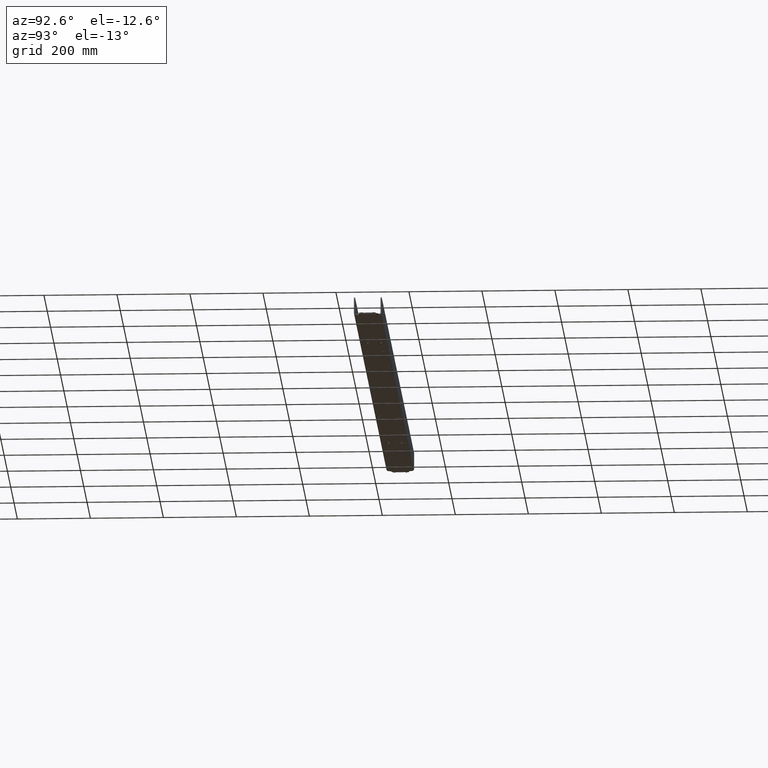
[diagram: clean part render]
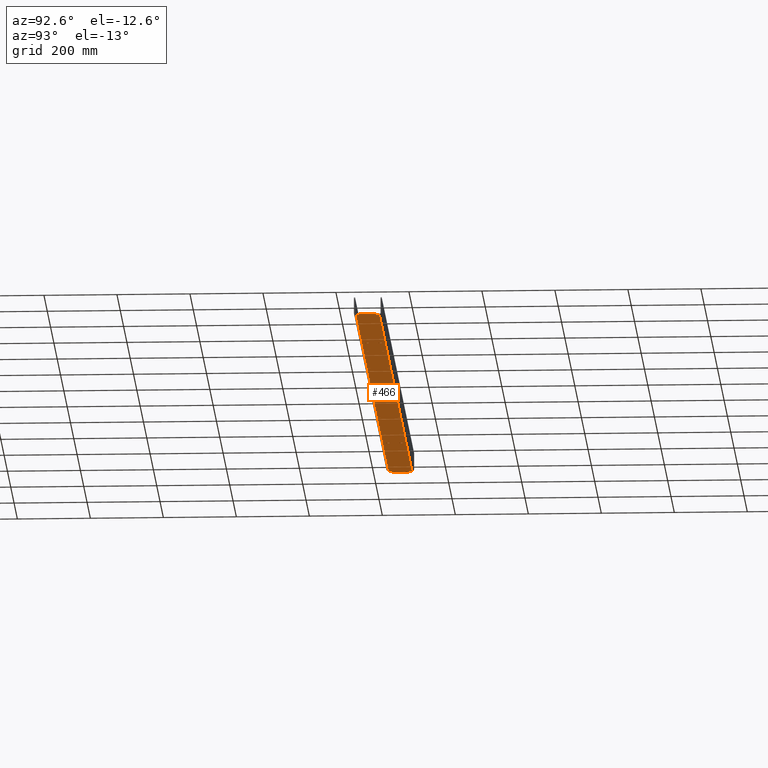
[diagram: same view with one face highlighted and labeled with its STEP entity id]
A machine part, auxiliary view. The second image highlights one B-rep face of the part: STEP entity #466.
In plain terms, the highlighted planar face has unit normal (-0, 0, 1).
Its self-contained STEP definition (entity closure, byte-faithful):
#2 = DIRECTION ( 'NONE',  ( -0.000000000000000000, -1.000000000000000000, 0.000000000000000000 ) ) ;
#10 = CARTESIAN_POINT ( 'NONE',  ( 1090.972523324353915, -1163.805262667904117, 625.0000000000001137 ) ) ;
#18 = DIRECTION ( 'NONE',  ( -0.000000000000000000, -1.000000000000000000, 0.000000000000000000 ) ) ;
#21 = CARTESIAN_POINT ( 'NONE',  ( 1090.972523324353915, -1155.305262667904344, 625.0000000000001137 ) ) ;
#24 = EDGE_CURVE ( 'NONE', #2666, #2037, #2991, .T. ) ;
#26 = CARTESIAN_POINT ( 'NONE',  ( 1090.972523324353915, -1155.305262667904344, 625.0000000000001137 ) ) ;
#33 = LINE ( 'NONE', #1465, #1481 ) ;
#34 = ORIENTED_EDGE ( 'NONE', *, *, #898, .F. ) ;
#38 = CARTESIAN_POINT ( 'NONE',  ( -309.8999999999996362, -1154.805262667903889, 625.0000000000001137 ) ) ;
#39 = VECTOR ( 'NONE', #1115, 1000.000000000000000 ) ;
#41 = DIRECTION ( 'NONE',  ( -1.000000000000000000, 0.000000000000000000, -0.000000000000000000 ) ) ;
#48 = ORIENTED_EDGE ( 'NONE', *, *, #209, .F. ) ;
#52 = LINE ( 'NONE', #2818, #665 ) ;
#55 = CARTESIAN_POINT ( 'NONE',  ( 1090.972523324353915, -1113.805262667903662, 625.0000000000001137 ) ) ;
#60 = ORIENTED_EDGE ( 'NONE', *, *, #2109, .F. ) ;
#61 = CARTESIAN_POINT ( 'NONE',  ( 633.1567381882846348, -1149.805262667904117, 625.0000000000001137 ) ) ;
#69 = DIRECTION ( 'NONE',  ( -0.000000000000000000, 0.000000000000000000, 1.000000000000000000 ) ) ;
#71 = CARTESIAN_POINT ( 'NONE',  ( 1090.972523324353915, -1155.805262667904344, 625.0000000000001137 ) ) ;
#92 = AXIS2_PLACEMENT_3D ( 'NONE', #1731, #3018, #2455 ) ;
#93 = VERTEX_POINT ( 'NONE', #794 ) ;
#94 = VECTOR ( 'NONE', #406, 1000.000000000000000 ) ;
#96 = CARTESIAN_POINT ( 'NONE',  ( 999.9999999999996589, -1149.305262667904344, 625.0000000000001137 ) ) ;
#102 = VECTOR ( 'NONE', #2, 1000.000000000000000 ) ;
#105 = VERTEX_POINT ( 'NONE', #546 ) ;
#106 = CARTESIAN_POINT ( 'NONE',  ( 519.9000000000004320, -1155.805262667904344, 625.0000000000001137 ) ) ;
#107 = CARTESIAN_POINT ( 'NONE',  ( -998.9999999999996589, -1114.305262667903435, 625.0000000000000000 ) ) ;
#110 = DIRECTION ( 'NONE',  ( 0.000000000000000000, 0.000000000000000000, 1.000000000000000000 ) ) ;
#112 = EDGE_CURVE ( 'NONE', #2290, #2559, #1256, .T. ) ;
#117 = ORIENTED_EDGE ( 'NONE', *, *, #2677, .F. ) ;
#118 = LINE ( 'NONE', #1369, #2054 ) ;
#120 = ORIENTED_EDGE ( 'NONE', *, *, #1865, .F. ) ;
#122 = DIRECTION ( 'NONE',  ( -0.000000000000000000, 0.000000000000000000, 1.000000000000000000 ) ) ;
#126 = FACE_BOUND ( 'NONE', #2669, .T. ) ;
#130 = CARTESIAN_POINT ( 'NONE',  ( 996.0000000000006821, -1108.305262667903662, 625.0000000000001137 ) ) ;
#133 = CARTESIAN_POINT ( 'NONE',  ( 996.0000000000003411, -1093.805262667904117, 625.0000000000001137 ) ) ;
#140 = VECTOR ( 'NONE', #1093, 1000.000000000000000 ) ;
#146 = DIRECTION ( 'NONE',  ( -1.000000000000000000, -0.000000000000000000, -0.000000000000000000 ) ) ;
#151 = VECTOR ( 'NONE', #2381, 1000.000000000000000 ) ;
#157 = VERTEX_POINT ( 'NONE', #1860 ) ;
#164 = CARTESIAN_POINT ( 'NONE',  ( 309.8999999999996362, -1160.805262667903662, 625.0000000000001137 ) ) ;
#165 = CARTESIAN_POINT ( 'NONE',  ( 989.9999999999995453, -1155.305262667904344, 625.0000000000001137 ) ) ;
#167 = ORIENTED_EDGE ( 'NONE', *, *, #185, .T. ) ;
#170 = CARTESIAN_POINT ( 'NONE',  ( 1090.972523324353915, -1099.805262667904117, 625.0000000000001137 ) ) ;
#180 = CARTESIAN_POINT ( 'NONE',  ( -628.1567381882845211, -1149.805262667904117, 625.0000000000001137 ) ) ;
#185 = EDGE_CURVE ( 'NONE', #543, #2907, #2591, .T. ) ;
#190 = DIRECTION ( 'NONE',  ( 1.000000000000000000, 0.000000000000000000, 0.000000000000000000 ) ) ;
#194 = DIRECTION ( 'NONE',  ( 0.000000000000000000, 1.000000000000000000, -0.000000000000000000 ) ) ;
#197 = DIRECTION ( 'NONE',  ( -1.000000000000000000, -0.000000000000000000, -0.000000000000000000 ) ) ;
#207 = AXIS2_PLACEMENT_3D ( 'NONE', #280, #2245, #539 ) ;
#209 = EDGE_CURVE ( 'NONE', #2144, #1702, #2935, .T. ) ;
#210 = CARTESIAN_POINT ( 'NONE',  ( -999.9999999999995453, -1146.305262667904117, 625.0000000000001137 ) ) ;
#214 = ORIENTED_EDGE ( 'NONE', *, *, #2799, .T. ) ;
#229 = CARTESIAN_POINT ( 'NONE',  ( 999.9999999999996589, -1114.305262667903435, 625.0000000000001137 ) ) ;
#232 = EDGE_CURVE ( 'NONE', #105, #1212, #2614, .T. ) ;
#239 = DIRECTION ( 'NONE',  ( 0.000000000000000000, -0.000000000000000000, -1.000000000000000000 ) ) ;
#243 = CIRCLE ( 'NONE', #1274, 1.000000000000000888 ) ;
#245 = LINE ( 'NONE', #1745, #2435 ) ;
#248 = AXIS2_PLACEMENT_3D ( 'NONE', #107, #2078, #2939 ) ;
#256 = VERTEX_POINT ( 'NONE', #2895 ) ;
#260 = EDGE_LOOP ( 'NONE', ( #1967, #1597, #591, #3069 ) ) ;
#262 = LINE ( 'NONE', #21, #920 ) ;
#267 = CARTESIAN_POINT ( 'NONE',  ( -313.0999999999995111, -1108.805262667903889, 625.0000000000001137 ) ) ;
#273 = EDGE_CURVE ( 'NONE', #950, #1032, #2862, .T. ) ;
#274 = DIRECTION ( 'NONE',  ( 0.000000000000000000, 1.000000000000000000, -0.000000000000000000 ) ) ;
#275 = VERTEX_POINT ( 'NONE', #1217 ) ;
#280 = CARTESIAN_POINT ( 'NONE',  ( 628.1567381882845211, -1149.805262667904117, 625.0000000000001137 ) ) ;
#282 = DIRECTION ( 'NONE',  ( 1.000000000000000000, 0.000000000000000000, 0.000000000000000000 ) ) ;
#286 = EDGE_CURVE ( 'NONE', #412, #1841, #2741, .T. ) ;
#287 = CARTESIAN_POINT ( 'NONE',  ( 313.0999999999996248, -1160.805262667903662, 625.0000000000001137 ) ) ;
#294 = ORIENTED_EDGE ( 'NONE', *, *, #3186, .F. ) ;
#299 = CARTESIAN_POINT ( 'NONE',  ( 990.0000000000006821, -1108.305262667903662, 625.0000000000001137 ) ) ;
#307 = CARTESIAN_POINT ( 'NONE',  ( -523.1000000000005912, -1113.805262667903662, 625.0000000000001137 ) ) ;
#309 = VECTOR ( 'NONE', #2917, 1000.000000000000000 ) ;
#314 = EDGE_CURVE ( 'NONE', #1253, #1322, #245, .T. ) ;
#334 = EDGE_LOOP ( 'NONE', ( #797, #3137, #792, #968 ) ) ;
#344 = AXIS2_PLACEMENT_3D ( 'NONE', #3076, #69, #2287 ) ;
#348 = DIRECTION ( 'NONE',  ( 0.000000000000000000, -0.000000000000000000, -1.000000000000000000 ) ) ;
#353 = VERTEX_POINT ( 'NONE', #2987 ) ;
#355 = ORIENTED_EDGE ( 'NONE', *, *, #1872, .T. ) ;
#356 = VECTOR ( 'NONE', #1165, 1000.000000000000000 ) ;
#359 = CARTESIAN_POINT ( 'NONE',  ( 1090.972523324353915, -1108.805262667903889, 625.0000000000001137 ) ) ;
#360 = AXIS2_PLACEMENT_3D ( 'NONE', #1959, #239, #1223 ) ;
#363 = DIRECTION ( 'NONE',  ( -0.000000000000000000, -1.000000000000000000, 0.000000000000000000 ) ) ;
#364 = LINE ( 'NONE', #1550, #1433 ) ;
#366 = DIRECTION ( 'NONE',  ( 0.000000000000000000, 1.000000000000000000, -0.000000000000000000 ) ) ;
#369 = CARTESIAN_POINT ( 'NONE',  ( 981.4999999999996589, -1099.805262667904117, 625.0000000000001137 ) ) ;
#372 = VERTEX_POINT ( 'NONE', #2490 ) ;
#377 = VERTEX_POINT ( 'NONE', #1979 ) ;
#386 = EDGE_CURVE ( 'NONE', #1668, #2444, #2091, .T. ) ;
#387 = CARTESIAN_POINT ( 'NONE',  ( 998.9999999999996589, -1117.305262667903662, 625.0000000000000000 ) ) ;
#392 = DIRECTION ( 'NONE',  ( -0.000000000000000000, -1.000000000000000000, 0.000000000000000000 ) ) ;
#406 = DIRECTION ( 'NONE',  ( 0.000000000000000000, 1.000000000000000000, -0.000000000000000000 ) ) ;
#407 = CIRCLE ( 'NONE', #2909, 5.000000000000115463 ) ;
#408 = EDGE_CURVE ( 'NONE', #353, #2452, #1621, .T. ) ;
#412 = VERTEX_POINT ( 'NONE', #165 ) ;
#414 = CARTESIAN_POINT ( 'NONE',  ( -519.9000000000004320, -1149.805262667904344, 625.0000000000001137 ) ) ;
#415 = VECTOR ( 'NONE', #282, 1000.000000000000000 ) ;
#418 = EDGE_CURVE ( 'NONE', #2870, #1668, #425, .T. ) ;
#422 = EDGE_CURVE ( 'NONE', #3077, #3196, #1816, .T. ) ;
#425 = LINE ( 'NONE', #3087, #513 ) ;
#426 = CARTESIAN_POINT ( 'NONE',  ( -989.9999999999997726, -1155.305262667904344, 625.0000000000001137 ) ) ;
#429 = DIRECTION ( 'NONE',  ( -1.000000000000000000, 0.000000000000000000, 0.000000000000000000 ) ) ;
#436 = CARTESIAN_POINT ( 'NONE',  ( 519.9000000000004320, -1107.805262667903889, 625.0000000000001137 ) ) ;
#450 = DIRECTION ( 'NONE',  ( 1.000000000000000000, 0.000000000000000000, 0.000000000000000000 ) ) ;
#455 = DIRECTION ( 'NONE',  ( 0.000000000000000000, 1.000000000000000000, -0.000000000000000000 ) ) ;
#466 = ADVANCED_FACE ( 'NONE', ( #1358, #2327, #2342, #126, #1132, #1427, #1919, #975, #735, #1931, #2459, #1721, #2691 ), #1734, .F. ) ;
#479 = CARTESIAN_POINT ( 'NONE',  ( 998.9999999999996589, -1118.305262667903435, 625.0000000000001137 ) ) ;
#481 = EDGE_CURVE ( 'NONE', #889, #275, #1710, .T. ) ;
#482 = CARTESIAN_POINT ( 'NONE',  ( 1090.972523324353915, -1150.305262667904117, 625.0000000000001137 ) ) ;
#494 = ORIENTED_EDGE ( 'NONE', *, *, #2554, .F. ) ;
#497 = DIRECTION ( 'NONE',  ( -0.000000000000000000, -1.000000000000000000, 0.000000000000000000 ) ) ;
#501 = DIRECTION ( 'NONE',  ( 1.000000000000000000, 0.000000000000000000, 0.000000000000000000 ) ) ;
#502 = ORIENTED_EDGE ( 'NONE', *, *, #2779, .T. ) ;
#510 = DIRECTION ( 'NONE',  ( -1.000000000000000000, -0.000000000000000000, -0.000000000000000000 ) ) ;
#511 = ORIENTED_EDGE ( 'NONE', *, *, #386, .F. ) ;
#513 = VECTOR ( 'NONE', #146, 1000.000000000000000 ) ;
#515 = VECTOR ( 'NONE', #924, 1000.000000000000000 ) ;
#519 = EDGE_CURVE ( 'NONE', #2444, #1003, #2508, .T. ) ;
#523 = CARTESIAN_POINT ( 'NONE',  ( 999.9999999999996589, -1093.805262667904117, 625.0000000000001137 ) ) ;
#531 = EDGE_CURVE ( 'NONE', #1320, #2885, #1842, .T. ) ;
#539 = DIRECTION ( 'NONE',  ( 1.000000000000000000, 0.000000000000000000, 0.000000000000000000 ) ) ;
#541 = VERTEX_POINT ( 'NONE', #61 ) ;
#543 = VERTEX_POINT ( 'NONE', #1044 ) ;
#546 = CARTESIAN_POINT ( 'NONE',  ( -313.0999999999995111, -1160.805262667903662, 625.0000000000001137 ) ) ;
#550 = ORIENTED_EDGE ( 'NONE', *, *, #2401, .T. ) ;
#552 = AXIS2_PLACEMENT_3D ( 'NONE', #1381, #1640, #2369 ) ;
#555 = CIRCLE ( 'NONE', #92, 5.000000000000115463 ) ;
#556 = VECTOR ( 'NONE', #2763, 1000.000000000000000 ) ;
#573 = VERTEX_POINT ( 'NONE', #709 ) ;
#578 = VERTEX_POINT ( 'NONE', #2180 ) ;
#580 = CARTESIAN_POINT ( 'NONE',  ( 313.0999999999996248, -1108.805262667903889, 625.0000000000001137 ) ) ;
#586 = LINE ( 'NONE', #2530, #2698 ) ;
#587 = VERTEX_POINT ( 'NONE', #2961 ) ;
#588 = DIRECTION ( 'NONE',  ( 0.000000000000000000, 1.000000000000000000, -0.000000000000000000 ) ) ;
#590 = ORIENTED_EDGE ( 'NONE', *, *, #1489, .T. ) ;
#591 = ORIENTED_EDGE ( 'NONE', *, *, #747, .F. ) ;
#600 = CARTESIAN_POINT ( 'NONE',  ( 523.1000000000004775, -1113.805262667903662, 625.0000000000001137 ) ) ;
#602 = CARTESIAN_POINT ( 'NONE',  ( -519.9000000000004320, -1113.805262667903662, 625.0000000000001137 ) ) ;
#605 = LINE ( 'NONE', #1321, #2748 ) ;
#613 = AXIS2_PLACEMENT_3D ( 'NONE', #1265, #2536, #1028 ) ;
#616 = LINE ( 'NONE', #170, #2481 ) ;
#620 = LINE ( 'NONE', #858, #812 ) ;
#627 = CARTESIAN_POINT ( 'NONE',  ( 1090.972523324353915, -1107.805262667903889, 625.0000000000001137 ) ) ;
#632 = CARTESIAN_POINT ( 'NONE',  ( 1090.972523324353915, -1154.805262667903889, 625.0000000000001137 ) ) ;
#646 = CARTESIAN_POINT ( 'NONE',  ( 1090.972523324353915, -1145.305262667904344, 625.0000000000001137 ) ) ;
#647 = DIRECTION ( 'NONE',  ( -1.000000000000000000, -0.000000000000000000, -0.000000000000000000 ) ) ;
#650 = CARTESIAN_POINT ( 'NONE',  ( -996.0000000000009095, -1113.305262667903662, 625.0000000000001137 ) ) ;
#652 = VECTOR ( 'NONE', #510, 1000.000000000000000 ) ;
#658 = EDGE_CURVE ( 'NONE', #377, #412, #727, .T. ) ;
#659 = CARTESIAN_POINT ( 'NONE',  ( -523.1000000000003638, -1107.805262667903889, 625.0000000000001137 ) ) ;
#660 = CIRCLE ( 'NONE', #2901, 1.000000000000000888 ) ;
#665 = VECTOR ( 'NONE', #1808, 1000.000000000000000 ) ;
#674 = VECTOR ( 'NONE', #1397, 1000.000000000000000 ) ;
#683 = CARTESIAN_POINT ( 'NONE',  ( 313.0999999999996248, -1093.805262667904117, 625.0000000000001137 ) ) ;
#685 = ORIENTED_EDGE ( 'NONE', *, *, #996, .F. ) ;
#689 = CARTESIAN_POINT ( 'NONE',  ( -523.1000000000003638, -1149.805262667904344, 625.0000000000001137 ) ) ;
#690 = DIRECTION ( 'NONE',  ( 1.000000000000000000, 0.000000000000000000, 0.000000000000000000 ) ) ;
#693 = EDGE_CURVE ( 'NONE', #1758, #2860, #2384, .T. ) ;
#695 = ORIENTED_EDGE ( 'NONE', *, *, #909, .F. ) ;
#697 = ORIENTED_EDGE ( 'NONE', *, *, #2218, .F. ) ;
#705 = EDGE_CURVE ( 'NONE', #2648, #908, #1318, .T. ) ;
#709 = CARTESIAN_POINT ( 'NONE',  ( -623.1567381882844074, -1149.805262667904117, 625.0000000000001137 ) ) ;
#727 = CIRCLE ( 'NONE', #360, 8.499999999999729994 ) ;
#728 = VERTEX_POINT ( 'NONE', #2576 ) ;
#729 = VECTOR ( 'NONE', #588, 1000.000000000000000 ) ;
#735 = FACE_BOUND ( 'NONE', #2797, .T. ) ;
#738 = EDGE_CURVE ( 'NONE', #1224, #1102, #1862, .T. ) ;
#745 = LINE ( 'NONE', #1741, #1941 ) ;
#747 = EDGE_CURVE ( 'NONE', #2343, #3084, #3144, .T. ) ;
#748 = ORIENTED_EDGE ( 'NONE', *, *, #1998, .F. ) ;
#767 = CIRCLE ( 'NONE', #344, 5.000000000000115463 ) ;
#769 = VECTOR ( 'NONE', #197, 1000.000000000000000 ) ;
#781 = VERTEX_POINT ( 'NONE', #1007 ) ;
#782 = CARTESIAN_POINT ( 'NONE',  ( 519.9000000000004320, -1093.805262667904117, 625.0000000000001137 ) ) ;
#792 = ORIENTED_EDGE ( 'NONE', *, *, #2254, .F. ) ;
#794 = CARTESIAN_POINT ( 'NONE',  ( 996.0000000000003411, -1150.305262667904117, 625.0000000000001137 ) ) ;
#797 = ORIENTED_EDGE ( 'NONE', *, *, #273, .F. ) ;
#812 = VECTOR ( 'NONE', #3095, 1000.000000000000000 ) ;
#818 = CIRCLE ( 'NONE', #3068, 5.000000000000115463 ) ;
#823 = AXIS2_PLACEMENT_3D ( 'NONE', #2217, #923, #690 ) ;
#838 = DIRECTION ( 'NONE',  ( -1.000000000000000000, -0.000000000000000000, -0.000000000000000000 ) ) ;
#846 = CARTESIAN_POINT ( 'NONE',  ( 519.9000000000004320, -1113.805262667903662, 625.0000000000001137 ) ) ;
#853 = EDGE_CURVE ( 'NONE', #2250, #1322, #2771, .T. ) ;
#855 = ORIENTED_EDGE ( 'NONE', *, *, #3024, .T. ) ;
#858 = CARTESIAN_POINT ( 'NONE',  ( 1090.972523324353915, -1149.805262667904344, 625.0000000000001137 ) ) ;
#860 = CIRCLE ( 'NONE', #248, 1.000000000000000888 ) ;
#877 = ORIENTED_EDGE ( 'NONE', *, *, #2169, .T. ) ;
#883 = ORIENTED_EDGE ( 'NONE', *, *, #738, .F. ) ;
#889 = VERTEX_POINT ( 'NONE', #2627 ) ;
#898 = EDGE_CURVE ( 'NONE', #2729, #353, #118, .T. ) ;
#902 = DIRECTION ( 'NONE',  ( -1.000000000000000000, -0.000000000000000000, -0.000000000000000000 ) ) ;
#903 = CARTESIAN_POINT ( 'NONE',  ( 1090.972523324353915, -1113.305262667903662, 625.0000000000001137 ) ) ;
#908 = VERTEX_POINT ( 'NONE', #2352 ) ;
#909 = EDGE_CURVE ( 'NONE', #3196, #2648, #1585, .T. ) ;
#912 = ORIENTED_EDGE ( 'NONE', *, *, #2854, .F. ) ;
#920 = VECTOR ( 'NONE', #1293, 1000.000000000000000 ) ;
#923 = DIRECTION ( 'NONE',  ( -0.000000000000000000, 0.000000000000000000, 1.000000000000000000 ) ) ;
#924 = DIRECTION ( 'NONE',  ( 1.000000000000000000, 0.000000000000000000, 0.000000000000000000 ) ) ;
#925 = VECTOR ( 'NONE', #838, 1000.000000000000000 ) ;
#926 = LINE ( 'NONE', #903, #1232 ) ;
#927 = LINE ( 'NONE', #632, #2482 ) ;
#928 = VECTOR ( 'NONE', #647, 1000.000000000000000 ) ;
#947 = DIRECTION ( 'NONE',  ( -1.000000000000000000, -0.000000000000000000, -0.000000000000000000 ) ) ;
#949 = LINE ( 'NONE', #523, #1336 ) ;
#950 = VERTEX_POINT ( 'NONE', #659 ) ;
#952 = LINE ( 'NONE', #2223, #102 ) ;
#957 = EDGE_CURVE ( 'NONE', #2885, #93, #1646, .T. ) ;
#966 = CARTESIAN_POINT ( 'NONE',  ( -309.8999999999996362, -1108.805262667903889, 625.0000000000001137 ) ) ;
#968 = ORIENTED_EDGE ( 'NONE', *, *, #1246, .F. ) ;
#975 = FACE_BOUND ( 'NONE', #1484, .T. ) ;
#994 = EDGE_CURVE ( 'NONE', #1586, #2103, #2735, .T. ) ;
#996 = EDGE_CURVE ( 'NONE', #1003, #2870, #1483, .T. ) ;
#1000 = ORIENTED_EDGE ( 'NONE', *, *, #1770, .F. ) ;
#1002 = CARTESIAN_POINT ( 'NONE',  ( 633.1567381882846348, -1113.805262667904117, 625.0000000000001137 ) ) ;
#1003 = VERTEX_POINT ( 'NONE', #2479 ) ;
#1007 = CARTESIAN_POINT ( 'NONE',  ( -998.9999999999996589, -1145.305262667904344, 625.0000000000001137 ) ) ;
#1011 = VERTEX_POINT ( 'NONE', #2162 ) ;
#1021 = ORIENTED_EDGE ( 'NONE', *, *, #1022, .T. ) ;
#1022 = EDGE_CURVE ( 'NONE', #2555, #105, #952, .T. ) ;
#1028 = DIRECTION ( 'NONE',  ( -1.000000000000000000, 0.000000000000000000, 0.000000000000000000 ) ) ;
#1032 = VERTEX_POINT ( 'NONE', #3089 ) ;
#1035 = LINE ( 'NONE', #1335, #1296 ) ;
#1037 = CARTESIAN_POINT ( 'NONE',  ( -998.9999999999996589, -1146.305262667904117, 625.0000000000000000 ) ) ;
#1039 = DIRECTION ( 'NONE',  ( -1.000000000000000000, -0.000000000000000000, -0.000000000000000000 ) ) ;
#1044 = CARTESIAN_POINT ( 'NONE',  ( 999.9999999999996589, -1117.305262667903662, 625.0000000000001137 ) ) ;
#1052 = CARTESIAN_POINT ( 'NONE',  ( -998.9999999999996589, -1149.305262667904344, 625.0000000000000000 ) ) ;
#1058 = ORIENTED_EDGE ( 'NONE', *, *, #1978, .F. ) ;
#1061 = VERTEX_POINT ( 'NONE', #2866 ) ;
#1067 = CIRCLE ( 'NONE', #3011, 5.000000000000115463 ) ;
#1085 = ORIENTED_EDGE ( 'NONE', *, *, #1178, .F. ) ;
#1093 = DIRECTION ( 'NONE',  ( -1.000000000000000000, -0.000000000000000000, -0.000000000000000000 ) ) ;
#1102 = VERTEX_POINT ( 'NONE', #299 ) ;
#1103 = CARTESIAN_POINT ( 'NONE',  ( 523.1000000000004775, -1155.805262667904344, 625.0000000000001137 ) ) ;
#1107 = EDGE_CURVE ( 'NONE', #1523, #1758, #1035, .T. ) ;
#1115 = DIRECTION ( 'NONE',  ( 0.000000000000000000, 1.000000000000000000, -0.000000000000000000 ) ) ;
#1119 = CARTESIAN_POINT ( 'NONE',  ( 998.9999999999996589, -1146.305262667904117, 625.0000000000000000 ) ) ;
#1121 = VECTOR ( 'NONE', #2150, 1000.000000000000000 ) ;
#1122 = VERTEX_POINT ( 'NONE', #1526 ) ;
#1126 = DIRECTION ( 'NONE',  ( -0.000000000000000000, -1.000000000000000000, 0.000000000000000000 ) ) ;
#1132 = FACE_OUTER_BOUND ( 'NONE', #3082, .T. ) ;
#1141 = CARTESIAN_POINT ( 'NONE',  ( -981.4999999999995453, -1163.805262667904117, 625.0000000000001137 ) ) ;
#1150 = DIRECTION ( 'NONE',  ( 1.000000000000000000, 0.000000000000000000, 0.000000000000000000 ) ) ;
#1163 = CARTESIAN_POINT ( 'NONE',  ( -628.1567381882845211, -1149.805262667904117, 625.0000000000001137 ) ) ;
#1165 = DIRECTION ( 'NONE',  ( 1.000000000000000000, 0.000000000000000000, 0.000000000000000000 ) ) ;
#1178 = EDGE_CURVE ( 'NONE', #372, #2787, #2657, .T. ) ;
#1187 = CIRCLE ( 'NONE', #3015, 5.000000000000115463 ) ;
#1188 = CARTESIAN_POINT ( 'NONE',  ( 1090.972523324353915, -1160.805262667903662, 625.0000000000001137 ) ) ;
#1197 = VECTOR ( 'NONE', #190, 1000.000000000000000 ) ;
#1204 = ORIENTED_EDGE ( 'NONE', *, *, #531, .T. ) ;
#1212 = VERTEX_POINT ( 'NONE', #2603 ) ;
#1215 = EDGE_CURVE ( 'NONE', #2432, #2555, #927, .T. ) ;
#1217 = CARTESIAN_POINT ( 'NONE',  ( -633.1567381882846348, -1113.805262667904117, 625.0000000000001137 ) ) ;
#1218 = VERTEX_POINT ( 'NONE', #1377 ) ;
#1223 = DIRECTION ( 'NONE',  ( 1.000000000000000000, 0.000000000000000000, 0.000000000000000000 ) ) ;
#1224 = VERTEX_POINT ( 'NONE', #130 ) ;
#1227 = DIRECTION ( 'NONE',  ( 0.000000000000000000, 0.000000000000000000, 1.000000000000000000 ) ) ;
#1228 = CIRCLE ( 'NONE', #1639, 1.000000000000000888 ) ;
#1232 = VECTOR ( 'NONE', #2173, 1000.000000000000000 ) ;
#1242 = ORIENTED_EDGE ( 'NONE', *, *, #1362, .T. ) ;
#1246 = EDGE_CURVE ( 'NONE', #1032, #2066, #1677, .T. ) ;
#1248 = VERTEX_POINT ( 'NONE', #2151 ) ;
#1253 = VERTEX_POINT ( 'NONE', #2676 ) ;
#1256 = LINE ( 'NONE', #2511, #556 ) ;
#1257 = CARTESIAN_POINT ( 'NONE',  ( 1090.972523324353915, -1113.305262667903662, 625.0000000000001137 ) ) ;
#1260 = CARTESIAN_POINT ( 'NONE',  ( 313.0999999999996248, -1093.805262667904117, 625.0000000000001137 ) ) ;
#1265 = CARTESIAN_POINT ( 'NONE',  ( 998.9999999999996589, -1149.305262667904344, 625.0000000000000000 ) ) ;
#1273 = DIRECTION ( 'NONE',  ( 0.000000000000000000, 1.000000000000000000, -0.000000000000000000 ) ) ;
#1274 = AXIS2_PLACEMENT_3D ( 'NONE', #1037, #110, #2315 ) ;
#1280 = ORIENTED_EDGE ( 'NONE', *, *, #1797, .T. ) ;
#1285 = CIRCLE ( 'NONE', #207, 5.000000000000115463 ) ;
#1293 = DIRECTION ( 'NONE',  ( 1.000000000000000000, 0.000000000000000000, 0.000000000000000000 ) ) ;
#1296 = VECTOR ( 'NONE', #363, 1000.000000000000000 ) ;
#1304 = CARTESIAN_POINT ( 'NONE',  ( 523.1000000000004775, -1093.805262667904117, 625.0000000000001137 ) ) ;
#1308 = ORIENTED_EDGE ( 'NONE', *, *, #2186, .T. ) ;
#1317 = VERTEX_POINT ( 'NONE', #2730 ) ;
#1318 = LINE ( 'NONE', #1810, #515 ) ;
#1320 = VERTEX_POINT ( 'NONE', #96 ) ;
#1321 = CARTESIAN_POINT ( 'NONE',  ( 1090.972523324353915, -1102.805262667903889, 625.0000000000001137 ) ) ;
#1322 = VERTEX_POINT ( 'NONE', #1607 ) ;
#1335 = CARTESIAN_POINT ( 'NONE',  ( -313.0999999999995111, -1093.805262667904117, 625.0000000000001137 ) ) ;
#1336 = VECTOR ( 'NONE', #18, 1000.000000000000000 ) ;
#1339 = VECTOR ( 'NONE', #366, 1000.000000000000000 ) ;
#1358 = FACE_BOUND ( 'NONE', #1937, .T. ) ;
#1361 = VERTEX_POINT ( 'NONE', #2095 ) ;
#1362 = EDGE_CURVE ( 'NONE', #2907, #2452, #1593, .T. ) ;
#1364 = LINE ( 'NONE', #133, #39 ) ;
#1365 = ORIENTED_EDGE ( 'NONE', *, *, #1215, .T. ) ;
#1369 = CARTESIAN_POINT ( 'NONE',  ( 1090.972523324353915, -1145.305262667904344, 625.0000000000001137 ) ) ;
#1377 = CARTESIAN_POINT ( 'NONE',  ( 523.1000000000004775, -1149.805262667904344, 625.0000000000001137 ) ) ;
#1378 = LINE ( 'NONE', #2662, #2578 ) ;
#1381 = CARTESIAN_POINT ( 'NONE',  ( -989.9999999999995453, -1163.805262667904117, 625.0000000000001137 ) ) ;
#1393 = DIRECTION ( 'NONE',  ( 1.000000000000000000, 0.000000000000000000, 0.000000000000000000 ) ) ;
#1397 = DIRECTION ( 'NONE',  ( 0.000000000000000000, 1.000000000000000000, -0.000000000000000000 ) ) ;
#1413 = LINE ( 'NONE', #2189, #1121 ) ;
#1422 = ORIENTED_EDGE ( 'NONE', *, *, #2826, .T. ) ;
#1427 = FACE_BOUND ( 'NONE', #260, .T. ) ;
#1429 = CARTESIAN_POINT ( 'NONE',  ( -523.1000000000005912, -1093.805262667904117, 625.0000000000001137 ) ) ;
#1433 = VECTOR ( 'NONE', #2791, 1000.000000000000000 ) ;
#1443 = EDGE_CURVE ( 'NONE', #1248, #1011, #860, .T. ) ;
#1445 = AXIS2_PLACEMENT_3D ( 'NONE', #3159, #1227, #2931 ) ;
#1450 = LINE ( 'NONE', #1429, #2039 ) ;
#1465 = CARTESIAN_POINT ( 'NONE',  ( -523.1000000000005912, -1093.805262667904117, 625.0000000000001137 ) ) ;
#1481 = VECTOR ( 'NONE', #274, 1000.000000000000000 ) ;
#1483 = LINE ( 'NONE', #683, #2056 ) ;
#1484 = EDGE_LOOP ( 'NONE', ( #2182, #2205, #2377, #1905 ) ) ;
#1485 = CARTESIAN_POINT ( 'NONE',  ( -999.9999999999995453, -1149.305262667904344, 625.0000000000001137 ) ) ;
#1489 = EDGE_CURVE ( 'NONE', #1248, #3209, #926, .T. ) ;
#1503 = VERTEX_POINT ( 'NONE', #426 ) ;
#1506 = CARTESIAN_POINT ( 'NONE',  ( 995.9999999999995453, -1155.305262667904344, 625.0000000000001137 ) ) ;
#1517 = EDGE_CURVE ( 'NONE', #2037, #157, #1413, .T. ) ;
#1521 = EDGE_CURVE ( 'NONE', #1809, #950, #1450, .T. ) ;
#1523 = VERTEX_POINT ( 'NONE', #3187 ) ;
#1526 = CARTESIAN_POINT ( 'NONE',  ( -996.0000000000009095, -1108.305262667903662, 625.0000000000001137 ) ) ;
#1545 = CIRCLE ( 'NONE', #2485, 8.499999999999729994 ) ;
#1548 = VECTOR ( 'NONE', #1599, 1000.000000000000000 ) ;
#1550 = CARTESIAN_POINT ( 'NONE',  ( -996.0000000000009095, -1093.805262667904117, 625.0000000000001137 ) ) ;
#1559 = EDGE_CURVE ( 'NONE', #256, #541, #1067, .T. ) ;
#1564 = EDGE_CURVE ( 'NONE', #781, #728, #2341, .T. ) ;
#1565 = ORIENTED_EDGE ( 'NONE', *, *, #2295, .T. ) ;
#1582 = CARTESIAN_POINT ( 'NONE',  ( -309.8999999999996362, -1093.805262667904117, 625.0000000000001137 ) ) ;
#1585 = LINE ( 'NONE', #2104, #729 ) ;
#1586 = VERTEX_POINT ( 'NONE', #689 ) ;
#1593 = LINE ( 'NONE', #1829, #140 ) ;
#1597 = ORIENTED_EDGE ( 'NONE', *, *, #2934, .F. ) ;
#1599 = DIRECTION ( 'NONE',  ( -0.000000000000000000, -1.000000000000000000, 0.000000000000000000 ) ) ;
#1607 = CARTESIAN_POINT ( 'NONE',  ( -996.0000000000009095, -1150.305262667904117, 625.0000000000001137 ) ) ;
#1610 = LINE ( 'NONE', #1304, #1548 ) ;
#1618 = VERTEX_POINT ( 'NONE', #1918 ) ;
#1621 = LINE ( 'NONE', #3099, #674 ) ;
#1630 = ORIENTED_EDGE ( 'NONE', *, *, #658, .F. ) ;
#1639 = AXIS2_PLACEMENT_3D ( 'NONE', #2665, #1853, #2393 ) ;
#1640 = DIRECTION ( 'NONE',  ( 0.000000000000000000, -0.000000000000000000, -1.000000000000000000 ) ) ;
#1646 = LINE ( 'NONE', #482, #2175 ) ;
#1647 = AXIS2_PLACEMENT_3D ( 'NONE', #2079, #2060, #3090 ) ;
#1662 = ORIENTED_EDGE ( 'NONE', *, *, #3085, .F. ) ;
#1668 = VERTEX_POINT ( 'NONE', #164 ) ;
#1671 = CARTESIAN_POINT ( 'NONE',  ( -309.8999999999996362, -1093.805262667904117, 625.0000000000001137 ) ) ;
#1677 = LINE ( 'NONE', #2849, #2262 ) ;
#1683 = CARTESIAN_POINT ( 'NONE',  ( -998.9999999999996589, -1118.305262667903435, 625.0000000000001137 ) ) ;
#1689 = ORIENTED_EDGE ( 'NONE', *, *, #1564, .T. ) ;
#1692 = ORIENTED_EDGE ( 'NONE', *, *, #1443, .F. ) ;
#1702 = VERTEX_POINT ( 'NONE', #1733 ) ;
#1707 = AXIS2_PLACEMENT_3D ( 'NONE', #387, #2111, #3162 ) ;
#1710 = CIRCLE ( 'NONE', #823, 5.000000000000115463 ) ;
#1714 = ORIENTED_EDGE ( 'NONE', *, *, #3061, .T. ) ;
#1721 = FACE_BOUND ( 'NONE', #2448, .T. ) ;
#1722 = ORIENTED_EDGE ( 'NONE', *, *, #2154, .F. ) ;
#1729 = CARTESIAN_POINT ( 'NONE',  ( 996.0000000000003411, -1118.305262667903435, 625.0000000000001137 ) ) ;
#1731 = CARTESIAN_POINT ( 'NONE',  ( 628.1567381882845211, -1113.805262667904117, 625.0000000000001137 ) ) ;
#1733 = CARTESIAN_POINT ( 'NONE',  ( 519.9000000000004320, -1149.805262667904344, 625.0000000000001137 ) ) ;
#1734 = PLANE ( 'NONE',  #3172 ) ;
#1738 = LINE ( 'NONE', #1956, #652 ) ;
#1741 = CARTESIAN_POINT ( 'NONE',  ( -999.9999999999995453, -1093.805262667904117, 625.0000000000001137 ) ) ;
#1744 = ORIENTED_EDGE ( 'NONE', *, *, #1517, .F. ) ;
#1745 = CARTESIAN_POINT ( 'NONE',  ( 1090.972523324353915, -1150.305262667904117, 625.0000000000001137 ) ) ;
#1750 = VECTOR ( 'NONE', #947, 1000.000000000000000 ) ;
#1758 = VERTEX_POINT ( 'NONE', #267 ) ;
#1770 = EDGE_CURVE ( 'NONE', #2580, #2290, #2704, .T. ) ;
#1797 = EDGE_CURVE ( 'NONE', #541, #256, #1285, .T. ) ;
#1808 = DIRECTION ( 'NONE',  ( -0.000000000000000000, -1.000000000000000000, 0.000000000000000000 ) ) ;
#1809 = VERTEX_POINT ( 'NONE', #307 ) ;
#1810 = CARTESIAN_POINT ( 'NONE',  ( 1090.972523324353915, -1102.805262667903889, 625.0000000000001137 ) ) ;
#1816 = LINE ( 'NONE', #359, #925 ) ;
#1828 = VECTOR ( 'NONE', #1126, 1000.000000000000000 ) ;
#1829 = CARTESIAN_POINT ( 'NONE',  ( 1090.972523324353915, -1118.305262667903435, 625.0000000000001137 ) ) ;
#1833 = ORIENTED_EDGE ( 'NONE', *, *, #112, .F. ) ;
#1841 = VERTEX_POINT ( 'NONE', #1506 ) ;
#1842 = CIRCLE ( 'NONE', #613, 1.000000000000000888 ) ;
#1853 = DIRECTION ( 'NONE',  ( -0.000000000000000000, -0.000000000000000000, -1.000000000000000000 ) ) ;
#1860 = CARTESIAN_POINT ( 'NONE',  ( 523.1000000000004775, -1107.805262667903889, 625.0000000000001137 ) ) ;
#1861 = CARTESIAN_POINT ( 'NONE',  ( 628.1567381882845211, -1149.805262667904117, 625.0000000000001137 ) ) ;
#1862 = LINE ( 'NONE', #2881, #928 ) ;
#1865 = EDGE_CURVE ( 'NONE', #2250, #1503, #262, .T. ) ;
#1872 = EDGE_CURVE ( 'NONE', #377, #2760, #3016, .T. ) ;
#1873 = VERTEX_POINT ( 'NONE', #1002 ) ;
#1881 = DIRECTION ( 'NONE',  ( 1.000000000000000000, 0.000000000000000000, 0.000000000000000000 ) ) ;
#1884 = EDGE_LOOP ( 'NONE', ( #1308, #1565 ) ) ;
#1894 = VECTOR ( 'NONE', #2085, 1000.000000000000000 ) ;
#1905 = ORIENTED_EDGE ( 'NONE', *, *, #2679, .T. ) ;
#1912 = ORIENTED_EDGE ( 'NONE', *, *, #481, .T. ) ;
#1914 = CARTESIAN_POINT ( 'NONE',  ( 999.9999999999996589, -1093.805262667904117, 625.0000000000001137 ) ) ;
#1918 = CARTESIAN_POINT ( 'NONE',  ( 996.0000000000003411, -1113.305262667903662, 625.0000000000001137 ) ) ;
#1919 = FACE_BOUND ( 'NONE', #334, .T. ) ;
#1928 = LINE ( 'NONE', #1914, #1828 ) ;
#1931 = FACE_BOUND ( 'NONE', #2294, .T. ) ;
#1936 = EDGE_CURVE ( 'NONE', #157, #3105, #1610, .T. ) ;
#1937 = EDGE_LOOP ( 'NONE', ( #1912, #1714 ) ) ;
#1941 = VECTOR ( 'NONE', #497, 1000.000000000000000 ) ;
#1942 = ORIENTED_EDGE ( 'NONE', *, *, #705, .F. ) ;
#1956 = CARTESIAN_POINT ( 'NONE',  ( 1090.972523324353915, -1108.305262667903662, 625.0000000000001137 ) ) ;
#1959 = CARTESIAN_POINT ( 'NONE',  ( 989.9999999999995453, -1163.805262667904117, 625.0000000000001137 ) ) ;
#1967 = ORIENTED_EDGE ( 'NONE', *, *, #994, .F. ) ;
#1978 = EDGE_CURVE ( 'NONE', #1618, #1224, #1364, .T. ) ;
#1979 = CARTESIAN_POINT ( 'NONE',  ( 981.4999999999996589, -1163.805262667904117, 625.0000000000001137 ) ) ;
#1980 = ORIENTED_EDGE ( 'NONE', *, *, #2088, .F. ) ;
#1986 = EDGE_CURVE ( 'NONE', #3209, #1122, #2836, .T. ) ;
#1998 = EDGE_CURVE ( 'NONE', #1102, #2557, #1545, .T. ) ;
#2009 = ORIENTED_EDGE ( 'NONE', *, *, #232, .T. ) ;
#2024 = VERTEX_POINT ( 'NONE', #1103 ) ;
#2028 = DIRECTION ( 'NONE',  ( 1.000000000000000000, 0.000000000000000000, 0.000000000000000000 ) ) ;
#2031 = CIRCLE ( 'NONE', #2891, 1.000000000000000888 ) ;
#2037 = VERTEX_POINT ( 'NONE', #436 ) ;
#2039 = VECTOR ( 'NONE', #455, 1000.000000000000000 ) ;
#2054 = VECTOR ( 'NONE', #2824, 1000.000000000000000 ) ;
#2056 = VECTOR ( 'NONE', #2964, 1000.000000000000000 ) ;
#2060 = DIRECTION ( 'NONE',  ( 0.000000000000000000, -0.000000000000000000, -1.000000000000000000 ) ) ;
#2065 = CARTESIAN_POINT ( 'NONE',  ( 989.9999999999995453, -1099.805262667904117, 625.0000000000001137 ) ) ;
#2066 = VERTEX_POINT ( 'NONE', #602 ) ;
#2073 = EDGE_CURVE ( 'NONE', #2860, #1317, #2835, .T. ) ;
#2078 = DIRECTION ( 'NONE',  ( 0.000000000000000000, 0.000000000000000000, 1.000000000000000000 ) ) ;
#2079 = CARTESIAN_POINT ( 'NONE',  ( -989.9999999999995453, -1099.805262667904117, 625.0000000000001137 ) ) ;
#2083 = CARTESIAN_POINT ( 'NONE',  ( -313.0999999999995111, -1154.805262667903889, 625.0000000000001137 ) ) ;
#2085 = DIRECTION ( 'NONE',  ( 0.000000000000000000, 1.000000000000000000, -0.000000000000000000 ) ) ;
#2088 = EDGE_CURVE ( 'NONE', #1503, #2760, #2266, .T. ) ;
#2091 = LINE ( 'NONE', #2898, #94 ) ;
#2094 = LINE ( 'NONE', #3117, #769 ) ;
#2095 = CARTESIAN_POINT ( 'NONE',  ( 999.9999999999996589, -1146.305262667904117, 625.0000000000001137 ) ) ;
#2103 = VERTEX_POINT ( 'NONE', #414 ) ;
#2104 = CARTESIAN_POINT ( 'NONE',  ( 309.8999999999996362, -1093.805262667904117, 625.0000000000001137 ) ) ;
#2109 = EDGE_CURVE ( 'NONE', #2024, #2144, #2390, .T. ) ;
#2111 = DIRECTION ( 'NONE',  ( -0.000000000000000000, -0.000000000000000000, -1.000000000000000000 ) ) ;
#2114 = DIRECTION ( 'NONE',  ( -1.000000000000000000, -0.000000000000000000, -0.000000000000000000 ) ) ;
#2115 = DIRECTION ( 'NONE',  ( 1.000000000000000000, -0.000000000000000000, -0.000000000000000000 ) ) ;
#2123 = LINE ( 'NONE', #2161, #1894 ) ;
#2136 = ORIENTED_EDGE ( 'NONE', *, *, #422, .F. ) ;
#2137 = ORIENTED_EDGE ( 'NONE', *, *, #408, .F. ) ;
#2144 = VERTEX_POINT ( 'NONE', #106 ) ;
#2149 = CARTESIAN_POINT ( 'NONE',  ( 1090.972523324353915, -1108.805262667903889, 625.0000000000001137 ) ) ;
#2150 = DIRECTION ( 'NONE',  ( 1.000000000000000000, 0.000000000000000000, 0.000000000000000000 ) ) ;
#2151 = CARTESIAN_POINT ( 'NONE',  ( -998.9999999999996589, -1113.305262667903662, 625.0000000000001137 ) ) ;
#2154 = EDGE_CURVE ( 'NONE', #3105, #2666, #2094, .T. ) ;
#2156 = VECTOR ( 'NONE', #2701, 1000.000000000000000 ) ;
#2161 = CARTESIAN_POINT ( 'NONE',  ( 995.9999999999995453, -1093.805262667904117, 625.0000000000001137 ) ) ;
#2162 = CARTESIAN_POINT ( 'NONE',  ( -999.9999999999995453, -1114.305262667903435, 625.0000000000001137 ) ) ;
#2163 = VECTOR ( 'NONE', #2789, 1000.000000000000000 ) ;
#2166 = VECTOR ( 'NONE', #501, 1000.000000000000000 ) ;
#2167 = CARTESIAN_POINT ( 'NONE',  ( 628.1567381882845211, -1113.805262667904117, 625.0000000000001137 ) ) ;
#2169 = EDGE_CURVE ( 'NONE', #1873, #587, #1187, .T. ) ;
#2173 = DIRECTION ( 'NONE',  ( 1.000000000000000000, 0.000000000000000000, 0.000000000000000000 ) ) ;
#2175 = VECTOR ( 'NONE', #2667, 1000.000000000000000 ) ;
#2180 = CARTESIAN_POINT ( 'NONE',  ( -633.1567381882846348, -1149.805262667904117, 625.0000000000001137 ) ) ;
#2182 = ORIENTED_EDGE ( 'NONE', *, *, #1107, .T. ) ;
#2186 = EDGE_CURVE ( 'NONE', #573, #578, #407, .T. ) ;
#2189 = CARTESIAN_POINT ( 'NONE',  ( 1090.972523324353915, -1107.805262667903889, 625.0000000000001137 ) ) ;
#2198 = EDGE_CURVE ( 'NONE', #587, #1873, #555, .T. ) ;
#2201 = DIRECTION ( 'NONE',  ( 1.000000000000000000, 0.000000000000000000, 0.000000000000000000 ) ) ;
#2203 = ORIENTED_EDGE ( 'NONE', *, *, #1936, .F. ) ;
#2205 = ORIENTED_EDGE ( 'NONE', *, *, #693, .T. ) ;
#2214 = VECTOR ( 'NONE', #1039, 1000.000000000000000 ) ;
#2217 = CARTESIAN_POINT ( 'NONE',  ( -628.1567381882845211, -1113.805262667904117, 625.0000000000001137 ) ) ;
#2218 = EDGE_CURVE ( 'NONE', #1841, #93, #2123, .T. ) ;
#2223 = CARTESIAN_POINT ( 'NONE',  ( -313.0999999999995111, -1093.805262667904117, 625.0000000000001137 ) ) ;
#2234 = ORIENTED_EDGE ( 'NONE', *, *, #2532, .F. ) ;
#2244 = CARTESIAN_POINT ( 'NONE',  ( 309.8999999999996362, -1154.805262667903889, 625.0000000000001137 ) ) ;
#2245 = DIRECTION ( 'NONE',  ( -0.000000000000000000, 0.000000000000000000, 1.000000000000000000 ) ) ;
#2250 = VERTEX_POINT ( 'NONE', #2827 ) ;
#2254 = EDGE_CURVE ( 'NONE', #2066, #1809, #2781, .T. ) ;
#2262 = VECTOR ( 'NONE', #2903, 1000.000000000000000 ) ;
#2266 = CIRCLE ( 'NONE', #552, 8.499999999999729994 ) ;
#2287 = DIRECTION ( 'NONE',  ( 1.000000000000000000, 0.000000000000000000, 0.000000000000000000 ) ) ;
#2290 = VERTEX_POINT ( 'NONE', #1683 ) ;
#2292 = CARTESIAN_POINT ( 'NONE',  ( -995.9999999999995453, -1093.805262667904117, 625.0000000000001137 ) ) ;
#2294 = EDGE_LOOP ( 'NONE', ( #60, #117, #3140, #48 ) ) ;
#2295 = EDGE_CURVE ( 'NONE', #578, #573, #818, .T. ) ;
#2315 = DIRECTION ( 'NONE',  ( 1.000000000000000000, 0.000000000000000000, 0.000000000000000000 ) ) ;
#2327 = FACE_BOUND ( 'NONE', #1884, .T. ) ;
#2331 = CARTESIAN_POINT ( 'NONE',  ( -523.1000000000005912, -1155.805262667904344, 625.0000000000001137 ) ) ;
#2333 = EDGE_CURVE ( 'NONE', #2422, #543, #1928, .T. ) ;
#2341 = LINE ( 'NONE', #646, #2899 ) ;
#2342 = FACE_BOUND ( 'NONE', #2778, .T. ) ;
#2343 = VERTEX_POINT ( 'NONE', #2916 ) ;
#2352 = CARTESIAN_POINT ( 'NONE',  ( 313.0999999999996248, -1102.805262667903889, 625.0000000000001137 ) ) ;
#2369 = DIRECTION ( 'NONE',  ( 1.000000000000000000, 0.000000000000000000, 0.000000000000000000 ) ) ;
#2373 = CARTESIAN_POINT ( 'NONE',  ( -990.0000000000006821, -1108.305262667903662, 625.0000000000001137 ) ) ;
#2374 = EDGE_LOOP ( 'NONE', ( #1722, #2203, #1744, #3036 ) ) ;
#2377 = ORIENTED_EDGE ( 'NONE', *, *, #2073, .T. ) ;
#2381 = DIRECTION ( 'NONE',  ( 1.000000000000000000, 0.000000000000000000, 0.000000000000000000 ) ) ;
#2384 = LINE ( 'NONE', #2149, #2595 ) ;
#2390 = LINE ( 'NONE', #2908, #1750 ) ;
#2393 = DIRECTION ( 'NONE',  ( -1.000000000000000000, 0.000000000000000000, 0.000000000000000000 ) ) ;
#2401 = EDGE_CURVE ( 'NONE', #1212, #2432, #2653, .T. ) ;
#2420 = CARTESIAN_POINT ( 'NONE',  ( 309.8999999999996362, -1108.805262667903889, 625.0000000000001137 ) ) ;
#2421 = VECTOR ( 'NONE', #3014, 1000.000000000000000 ) ;
#2422 = VERTEX_POINT ( 'NONE', #229 ) ;
#2428 = VECTOR ( 'NONE', #41, 1000.000000000000000 ) ;
#2432 = VERTEX_POINT ( 'NONE', #38 ) ;
#2435 = VECTOR ( 'NONE', #3199, 1000.000000000000000 ) ;
#2444 = VERTEX_POINT ( 'NONE', #2244 ) ;
#2448 = EDGE_LOOP ( 'NONE', ( #695, #2136, #494, #1942 ) ) ;
#2452 = VERTEX_POINT ( 'NONE', #1729 ) ;
#2455 = DIRECTION ( 'NONE',  ( 1.000000000000000000, 0.000000000000000000, 0.000000000000000000 ) ) ;
#2459 = FACE_BOUND ( 'NONE', #2374, .T. ) ;
#2465 = ORIENTED_EDGE ( 'NONE', *, *, #3108, .F. ) ;
#2478 = ORIENTED_EDGE ( 'NONE', *, *, #519, .F. ) ;
#2479 = CARTESIAN_POINT ( 'NONE',  ( 313.0999999999996248, -1154.805262667903889, 625.0000000000001137 ) ) ;
#2481 = VECTOR ( 'NONE', #2115, 1000.000000000000000 ) ;
#2482 = VECTOR ( 'NONE', #2114, 1000.000000000000000 ) ;
#2485 = AXIS2_PLACEMENT_3D ( 'NONE', #2065, #348, #3093 ) ;
#2490 = CARTESIAN_POINT ( 'NONE',  ( -981.4999999999995453, -1099.805262667904117, 625.0000000000001137 ) ) ;
#2504 = LINE ( 'NONE', #1260, #2421 ) ;
#2508 = LINE ( 'NONE', #2773, #415 ) ;
#2511 = CARTESIAN_POINT ( 'NONE',  ( 1090.972523324353915, -1118.305262667903435, 625.0000000000001137 ) ) ;
#2530 = CARTESIAN_POINT ( 'NONE',  ( 523.1000000000004775, -1093.805262667904117, 625.0000000000001137 ) ) ;
#2532 = EDGE_CURVE ( 'NONE', #2825, #2534, #745, .T. ) ;
#2534 = VERTEX_POINT ( 'NONE', #1485 ) ;
#2536 = DIRECTION ( 'NONE',  ( -0.000000000000000000, -0.000000000000000000, -1.000000000000000000 ) ) ;
#2537 = VECTOR ( 'NONE', #2810, 1000.000000000000000 ) ;
#2546 = VECTOR ( 'NONE', #1273, 1000.000000000000000 ) ;
#2553 = DIRECTION ( 'NONE',  ( -1.000000000000000000, -0.000000000000000000, -0.000000000000000000 ) ) ;
#2554 = EDGE_CURVE ( 'NONE', #908, #3077, #2504, .T. ) ;
#2555 = VERTEX_POINT ( 'NONE', #2083 ) ;
#2557 = VERTEX_POINT ( 'NONE', #369 ) ;
#2559 = VERTEX_POINT ( 'NONE', #3043 ) ;
#2565 = CARTESIAN_POINT ( 'NONE',  ( 309.8999999999996362, -1102.805262667903889, 625.0000000000001137 ) ) ;
#2568 = ORIENTED_EDGE ( 'NONE', *, *, #957, .T. ) ;
#2576 = CARTESIAN_POINT ( 'NONE',  ( -996.0000000000009095, -1145.305262667904344, 625.0000000000001137 ) ) ;
#2578 = VECTOR ( 'NONE', #392, 1000.000000000000000 ) ;
#2580 = VERTEX_POINT ( 'NONE', #3060 ) ;
#2591 = CIRCLE ( 'NONE', #1707, 1.000000000000000888 ) ;
#2595 = VECTOR ( 'NONE', #1881, 1000.000000000000000 ) ;
#2596 = DIRECTION ( 'NONE',  ( -0.000000000000000000, -1.000000000000000000, 0.000000000000000000 ) ) ;
#2603 = CARTESIAN_POINT ( 'NONE',  ( -309.8999999999996362, -1160.805262667903662, 625.0000000000001137 ) ) ;
#2614 = LINE ( 'NONE', #1188, #151 ) ;
#2627 = CARTESIAN_POINT ( 'NONE',  ( -623.1567381882844074, -1113.805262667904117, 625.0000000000001137 ) ) ;
#2648 = VERTEX_POINT ( 'NONE', #2565 ) ;
#2651 = EDGE_CURVE ( 'NONE', #1702, #1218, #620, .T. ) ;
#2653 = LINE ( 'NONE', #1671, #3058 ) ;
#2657 = CIRCLE ( 'NONE', #1647, 8.499999999999729994 ) ;
#2662 = CARTESIAN_POINT ( 'NONE',  ( -999.9999999999995453, -1093.805262667904117, 625.0000000000001137 ) ) ;
#2665 = CARTESIAN_POINT ( 'NONE',  ( 998.9999999999996589, -1114.305262667903435, 625.0000000000000000 ) ) ;
#2666 = VERTEX_POINT ( 'NONE', #846 ) ;
#2667 = DIRECTION ( 'NONE',  ( -1.000000000000000000, -0.000000000000000000, -0.000000000000000000 ) ) ;
#2669 = EDGE_LOOP ( 'NONE', ( #1280, #2889 ) ) ;
#2673 = DIRECTION ( 'NONE',  ( -0.000000000000000000, 0.000000000000000000, 1.000000000000000000 ) ) ;
#2676 = CARTESIAN_POINT ( 'NONE',  ( -998.9999999999996589, -1150.305262667904117, 625.0000000000001137 ) ) ;
#2677 = EDGE_CURVE ( 'NONE', #1218, #2024, #586, .T. ) ;
#2679 = EDGE_CURVE ( 'NONE', #1317, #1523, #605, .T. ) ;
#2685 = DIRECTION ( 'NONE',  ( -0.000000000000000000, 0.000000000000000000, 1.000000000000000000 ) ) ;
#2691 = FACE_BOUND ( 'NONE', #2980, .T. ) ;
#2698 = VECTOR ( 'NONE', #2596, 1000.000000000000000 ) ;
#2701 = DIRECTION ( 'NONE',  ( -1.000000000000000000, -0.000000000000000000, -0.000000000000000000 ) ) ;
#2704 = CIRCLE ( 'NONE', #1445, 1.000000000000000888 ) ;
#2705 = CARTESIAN_POINT ( 'NONE',  ( 1090.972523324353915, -1149.805262667904344, 625.0000000000001137 ) ) ;
#2714 = DIRECTION ( 'NONE',  ( -0.000000000000000000, 0.000000000000000000, 1.000000000000000000 ) ) ;
#2729 = VERTEX_POINT ( 'NONE', #2873 ) ;
#2730 = CARTESIAN_POINT ( 'NONE',  ( -309.8999999999996362, -1102.805262667903889, 625.0000000000001137 ) ) ;
#2732 = LINE ( 'NONE', #1257, #2156 ) ;
#2735 = LINE ( 'NONE', #2705, #1197 ) ;
#2740 = ORIENTED_EDGE ( 'NONE', *, *, #853, .T. ) ;
#2741 = LINE ( 'NONE', #26, #2166 ) ;
#2748 = VECTOR ( 'NONE', #2553, 1000.000000000000000 ) ;
#2760 = VERTEX_POINT ( 'NONE', #1141 ) ;
#2761 = VECTOR ( 'NONE', #902, 1000.000000000000000 ) ;
#2763 = DIRECTION ( 'NONE',  ( 1.000000000000000000, 0.000000000000000000, 0.000000000000000000 ) ) ;
#2766 = ORIENTED_EDGE ( 'NONE', *, *, #314, .F. ) ;
#2771 = LINE ( 'NONE', #2292, #2546 ) ;
#2773 = CARTESIAN_POINT ( 'NONE',  ( 1090.972523324353915, -1154.805262667903889, 625.0000000000001137 ) ) ;
#2778 = EDGE_LOOP ( 'NONE', ( #877, #3080 ) ) ;
#2779 = EDGE_CURVE ( 'NONE', #1061, #2422, #1228, .T. ) ;
#2781 = LINE ( 'NONE', #55, #2214 ) ;
#2787 = VERTEX_POINT ( 'NONE', #2373 ) ;
#2789 = DIRECTION ( 'NONE',  ( 0.000000000000000000, 1.000000000000000000, -0.000000000000000000 ) ) ;
#2791 = DIRECTION ( 'NONE',  ( 0.000000000000000000, 1.000000000000000000, -0.000000000000000000 ) ) ;
#2797 = EDGE_LOOP ( 'NONE', ( #1021, #2009, #550, #1365 ) ) ;
#2799 = EDGE_CURVE ( 'NONE', #2729, #1361, #660, .T. ) ;
#2802 = ORIENTED_EDGE ( 'NONE', *, *, #2333, .T. ) ;
#2810 = DIRECTION ( 'NONE',  ( 0.000000000000000000, 1.000000000000000000, -0.000000000000000000 ) ) ;
#2812 = ORIENTED_EDGE ( 'NONE', *, *, #286, .F. ) ;
#2818 = CARTESIAN_POINT ( 'NONE',  ( -519.9000000000004320, -1093.805262667904117, 625.0000000000001137 ) ) ;
#2824 = DIRECTION ( 'NONE',  ( -1.000000000000000000, -0.000000000000000000, -0.000000000000000000 ) ) ;
#2825 = VERTEX_POINT ( 'NONE', #210 ) ;
#2826 = EDGE_CURVE ( 'NONE', #1361, #1320, #949, .T. ) ;
#2827 = CARTESIAN_POINT ( 'NONE',  ( -995.9999999999995453, -1155.305262667904344, 625.0000000000001137 ) ) ;
#2835 = LINE ( 'NONE', #1582, #1339 ) ;
#2836 = LINE ( 'NONE', #3040, #2537 ) ;
#2849 = CARTESIAN_POINT ( 'NONE',  ( -519.9000000000004320, -1093.805262667904117, 625.0000000000001137 ) ) ;
#2854 = EDGE_CURVE ( 'NONE', #2787, #1122, #1738, .T. ) ;
#2860 = VERTEX_POINT ( 'NONE', #966 ) ;
#2862 = LINE ( 'NONE', #627, #356 ) ;
#2866 = CARTESIAN_POINT ( 'NONE',  ( 998.9999999999996589, -1113.305262667903662, 625.0000000000001137 ) ) ;
#2870 = VERTEX_POINT ( 'NONE', #287 ) ;
#2873 = CARTESIAN_POINT ( 'NONE',  ( 998.9999999999996589, -1145.305262667904344, 625.0000000000001137 ) ) ;
#2880 = CARTESIAN_POINT ( 'NONE',  ( 519.9000000000004320, -1093.805262667904117, 625.0000000000001137 ) ) ;
#2881 = CARTESIAN_POINT ( 'NONE',  ( 1090.972523324353915, -1108.305262667903662, 625.0000000000001137 ) ) ;
#2885 = VERTEX_POINT ( 'NONE', #2979 ) ;
#2888 = DIRECTION ( 'NONE',  ( -0.000000000000000000, -0.000000000000000000, -1.000000000000000000 ) ) ;
#2889 = ORIENTED_EDGE ( 'NONE', *, *, #1559, .T. ) ;
#2891 = AXIS2_PLACEMENT_3D ( 'NONE', #1052, #3038, #2028 ) ;
#2895 = CARTESIAN_POINT ( 'NONE',  ( 623.1567381882844074, -1149.805262667904117, 625.0000000000001137 ) ) ;
#2898 = CARTESIAN_POINT ( 'NONE',  ( 309.8999999999996362, -1093.805262667904117, 625.0000000000001137 ) ) ;
#2899 = VECTOR ( 'NONE', #1150, 1000.000000000000000 ) ;
#2901 = AXIS2_PLACEMENT_3D ( 'NONE', #1119, #2888, #429 ) ;
#2903 = DIRECTION ( 'NONE',  ( -0.000000000000000000, -1.000000000000000000, 0.000000000000000000 ) ) ;
#2907 = VERTEX_POINT ( 'NONE', #479 ) ;
#2908 = CARTESIAN_POINT ( 'NONE',  ( 1090.972523324353915, -1155.805262667904344, 625.0000000000001137 ) ) ;
#2909 = AXIS2_PLACEMENT_3D ( 'NONE', #180, #3161, #3111 ) ;
#2916 = CARTESIAN_POINT ( 'NONE',  ( -519.9000000000004320, -1155.805262667904344, 625.0000000000001137 ) ) ;
#2917 = DIRECTION ( 'NONE',  ( 0.000000000000000000, 1.000000000000000000, -0.000000000000000000 ) ) ;
#2918 = EDGE_CURVE ( 'NONE', #1061, #1618, #2732, .T. ) ;
#2931 = DIRECTION ( 'NONE',  ( 1.000000000000000000, 0.000000000000000000, 0.000000000000000000 ) ) ;
#2934 = EDGE_CURVE ( 'NONE', #3084, #1586, #33, .T. ) ;
#2935 = LINE ( 'NONE', #2880, #309 ) ;
#2938 = ORIENTED_EDGE ( 'NONE', *, *, #2918, .F. ) ;
#2939 = DIRECTION ( 'NONE',  ( 1.000000000000000000, 0.000000000000000000, 0.000000000000000000 ) ) ;
#2942 = ORIENTED_EDGE ( 'NONE', *, *, #1986, .T. ) ;
#2950 = CARTESIAN_POINT ( 'NONE',  ( 1090.972523324353915, -1093.805262667904117, 625.0000000000001137 ) ) ;
#2961 = CARTESIAN_POINT ( 'NONE',  ( 623.1567381882844074, -1113.805262667904117, 625.0000000000001137 ) ) ;
#2964 = DIRECTION ( 'NONE',  ( -0.000000000000000000, -1.000000000000000000, 0.000000000000000000 ) ) ;
#2979 = CARTESIAN_POINT ( 'NONE',  ( 998.9999999999996589, -1150.305262667904117, 625.0000000000001137 ) ) ;
#2980 = EDGE_LOOP ( 'NONE', ( #511, #3054, #685, #2478 ) ) ;
#2987 = CARTESIAN_POINT ( 'NONE',  ( 996.0000000000003411, -1145.305262667904344, 625.0000000000001137 ) ) ;
#2991 = LINE ( 'NONE', #782, #2163 ) ;
#3011 = AXIS2_PLACEMENT_3D ( 'NONE', #1861, #2673, #3164 ) ;
#3014 = DIRECTION ( 'NONE',  ( -0.000000000000000000, -1.000000000000000000, 0.000000000000000000 ) ) ;
#3015 = AXIS2_PLACEMENT_3D ( 'NONE', #2167, #122, #1393 ) ;
#3016 = LINE ( 'NONE', #10, #2428 ) ;
#3018 = DIRECTION ( 'NONE',  ( -0.000000000000000000, 0.000000000000000000, 1.000000000000000000 ) ) ;
#3024 = EDGE_CURVE ( 'NONE', #728, #2559, #364, .T. ) ;
#3036 = ORIENTED_EDGE ( 'NONE', *, *, #24, .F. ) ;
#3038 = DIRECTION ( 'NONE',  ( 0.000000000000000000, 0.000000000000000000, 1.000000000000000000 ) ) ;
#3040 = CARTESIAN_POINT ( 'NONE',  ( -996.0000000000009095, -1093.805262667904117, 625.0000000000001137 ) ) ;
#3043 = CARTESIAN_POINT ( 'NONE',  ( -996.0000000000009095, -1118.305262667903435, 625.0000000000001137 ) ) ;
#3054 = ORIENTED_EDGE ( 'NONE', *, *, #418, .F. ) ;
#3058 = VECTOR ( 'NONE', #194, 1000.000000000000000 ) ;
#3060 = CARTESIAN_POINT ( 'NONE',  ( -999.9999999999995453, -1117.305262667903662, 625.0000000000001137 ) ) ;
#3061 = EDGE_CURVE ( 'NONE', #275, #889, #767, .T. ) ;
#3068 = AXIS2_PLACEMENT_3D ( 'NONE', #1163, #2685, #450 ) ;
#3069 = ORIENTED_EDGE ( 'NONE', *, *, #3073, .F. ) ;
#3073 = EDGE_CURVE ( 'NONE', #2103, #2343, #52, .T. ) ;
#3076 = CARTESIAN_POINT ( 'NONE',  ( -628.1567381882845211, -1113.805262667904117, 625.0000000000001137 ) ) ;
#3077 = VERTEX_POINT ( 'NONE', #580 ) ;
#3080 = ORIENTED_EDGE ( 'NONE', *, *, #2198, .T. ) ;
#3082 = EDGE_LOOP ( 'NONE', ( #1085, #3178, #748, #883, #1058, #2938, #502, #2802, #167, #1242, #2137, #34, #214, #1422, #1204, #2568, #697, #2812, #1630, #355, #1980, #120, #2740, #2766, #2465, #2234, #1662, #1689, #855, #1833, #1000, #294, #1692, #590, #2942, #912 ) ) ;
#3084 = VERTEX_POINT ( 'NONE', #2331 ) ;
#3085 = EDGE_CURVE ( 'NONE', #781, #2825, #243, .T. ) ;
#3087 = CARTESIAN_POINT ( 'NONE',  ( 1090.972523324353915, -1160.805262667903662, 625.0000000000001137 ) ) ;
#3089 = CARTESIAN_POINT ( 'NONE',  ( -519.9000000000004320, -1107.805262667903889, 625.0000000000001137 ) ) ;
#3090 = DIRECTION ( 'NONE',  ( 1.000000000000000000, 0.000000000000000000, 0.000000000000000000 ) ) ;
#3093 = DIRECTION ( 'NONE',  ( 1.000000000000000000, 0.000000000000000000, 0.000000000000000000 ) ) ;
#3095 = DIRECTION ( 'NONE',  ( 1.000000000000000000, 0.000000000000000000, 0.000000000000000000 ) ) ;
#3099 = CARTESIAN_POINT ( 'NONE',  ( 996.0000000000003411, -1093.805262667904117, 625.0000000000001137 ) ) ;
#3105 = VERTEX_POINT ( 'NONE', #600 ) ;
#3108 = EDGE_CURVE ( 'NONE', #2534, #1253, #2031, .T. ) ;
#3111 = DIRECTION ( 'NONE',  ( 1.000000000000000000, 0.000000000000000000, 0.000000000000000000 ) ) ;
#3117 = CARTESIAN_POINT ( 'NONE',  ( 1090.972523324353915, -1113.805262667903662, 625.0000000000001137 ) ) ;
#3137 = ORIENTED_EDGE ( 'NONE', *, *, #1521, .F. ) ;
#3140 = ORIENTED_EDGE ( 'NONE', *, *, #2651, .F. ) ;
#3144 = LINE ( 'NONE', #71, #2761 ) ;
#3159 = CARTESIAN_POINT ( 'NONE',  ( -998.9999999999996589, -1117.305262667903662, 625.0000000000000000 ) ) ;
#3161 = DIRECTION ( 'NONE',  ( -0.000000000000000000, 0.000000000000000000, 1.000000000000000000 ) ) ;
#3162 = DIRECTION ( 'NONE',  ( -1.000000000000000000, 0.000000000000000000, 0.000000000000000000 ) ) ;
#3164 = DIRECTION ( 'NONE',  ( 1.000000000000000000, 0.000000000000000000, 0.000000000000000000 ) ) ;
#3172 = AXIS2_PLACEMENT_3D ( 'NONE', #2950, #2714, #2201 ) ;
#3178 = ORIENTED_EDGE ( 'NONE', *, *, #3204, .T. ) ;
#3186 = EDGE_CURVE ( 'NONE', #1011, #2580, #1378, .T. ) ;
#3187 = CARTESIAN_POINT ( 'NONE',  ( -313.0999999999995111, -1102.805262667903889, 625.0000000000001137 ) ) ;
#3196 = VERTEX_POINT ( 'NONE', #2420 ) ;
#3199 = DIRECTION ( 'NONE',  ( 1.000000000000000000, 0.000000000000000000, 0.000000000000000000 ) ) ;
#3204 = EDGE_CURVE ( 'NONE', #372, #2557, #616, .T. ) ;
#3209 = VERTEX_POINT ( 'NONE', #650 ) ;